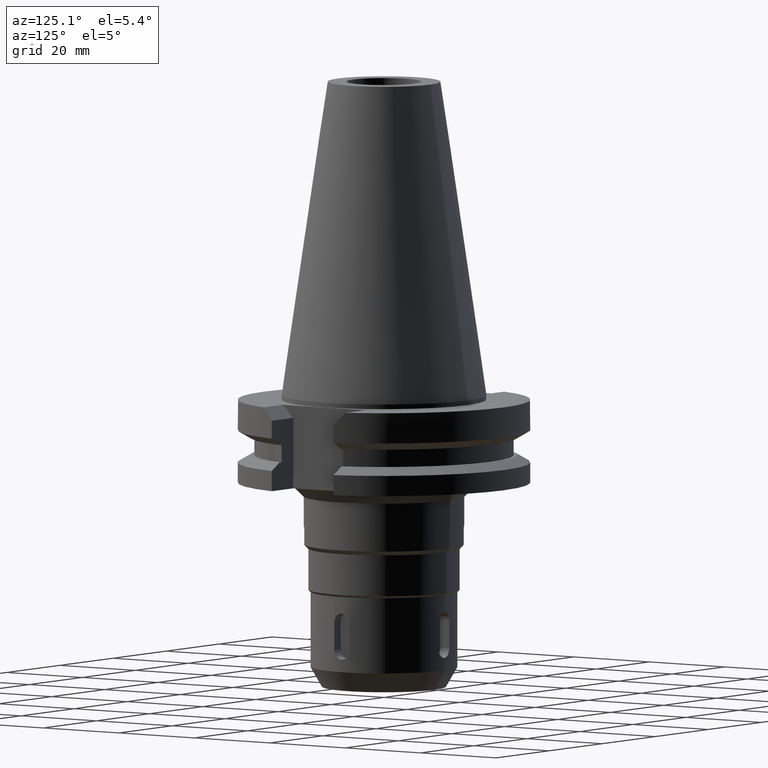
[diagram: clean part render]
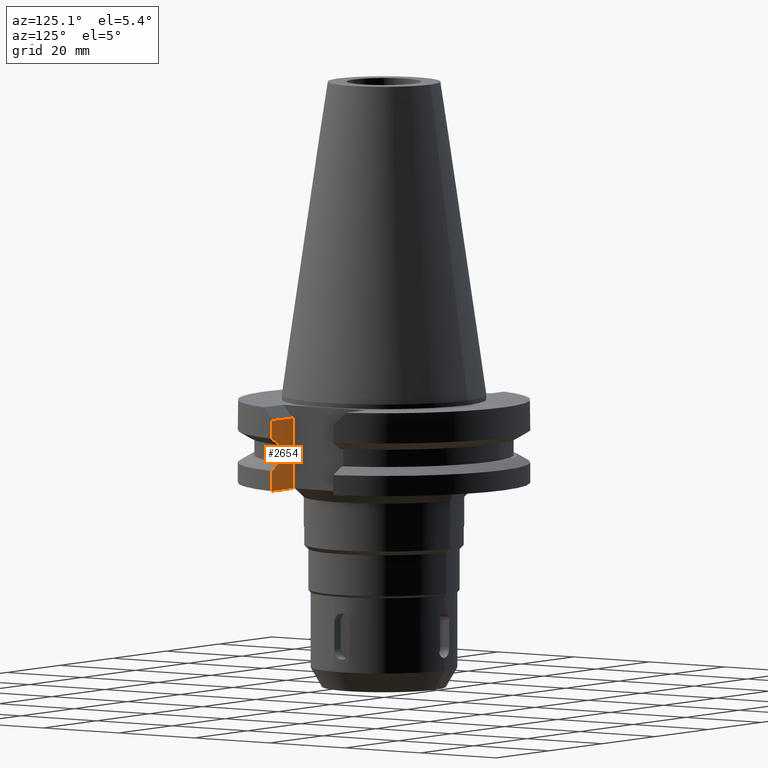
[diagram: same view with one face highlighted and labeled with its STEP entity id]
A machine part, auxiliary view. The second image highlights one B-rep face of the part: STEP entity #2654.
In plain terms, the highlighted planar face has unit normal (0, -1, 0).
Its self-contained STEP definition (entity closure, byte-faithful):
#170=DIRECTION('',(0.E0,0.E0,1.E0));
#171=VECTOR('',#170,1.535E1);
#172=CARTESIAN_POINT('',(2.257E1,-8.19E0,-1.905E1));
#173=LINE('',#172,#171);
#583=DIRECTION('',(-4.159181159240E-8,-1.557818286709E-7,-1.E0));
#584=VECTOR('',#583,3.901327799664E0);
#585=CARTESIAN_POINT('',(3.067550162589E1,-8.19E0,-3.7E0));
#586=LINE('',#585,#584);
#605=DIRECTION('',(1.E0,0.E0,0.E0));
#606=VECTOR('',#605,8.105501625890E0);
#607=CARTESIAN_POINT('',(2.257E1,-8.19E0,-1.905E1));
#608=LINE('',#607,#606);
#612=DIRECTION('',(1.E0,-2.301803100821E-7,-1.025792351895E-12));
#613=VECTOR('',#612,8.225538990973E-1);
#614=CARTESIAN_POINT('',(2.696361066326E1,-8.19E0,-9.2075E0));
#615=LINE('',#614,#613);
#619=CARTESIAN_POINT('',(2.778616456236E1,-8.190000189336E0,-9.207500000001E0));
#620=CARTESIAN_POINT('',(2.810749131974E1,-8.190000189336E0,-9.029550884072E0));
#621=CARTESIAN_POINT('',(2.874991652118E1,-8.189999992677E0,-8.673260527708E0));
#622=CARTESIAN_POINT('',(2.971304235263E1,-8.189999741625E0,-8.137892751983E0));
#623=CARTESIAN_POINT('',(3.035472199192E1,-8.190000607756E0,-7.780262214448E0));
#624=CARTESIAN_POINT('',(3.067550146363E1,-8.190000607756E0,-7.601327799664E0));
#629=DIRECTION('',(-1.E0,0.E0,0.E0));
#630=VECTOR('',#629,8.105501625890E0);
#631=CARTESIAN_POINT('',(3.067550162589E1,-8.19E0,-3.7E0));
#632=LINE('',#631,#630);
#636=DIRECTION('',(3.690865793663E-8,1.382412795709E-7,-1.E0));
#637=VECTOR('',#636,4.396327799926E0);
#638=CARTESIAN_POINT('',(3.067550146363E1,-8.190000607754E0,-1.465367220007E1));
#639=LINE('',#638,#637);
#729=DIRECTION('',(0.E0,0.E0,-1.E0));
#730=VECTOR('',#729,3.84E0);
#731=CARTESIAN_POINT('',(2.696361066326E1,-8.19E0,-9.2075E0));
#732=LINE('',#731,#730);
#743=DIRECTION('',(1.E0,-2.302118592400E-7,4.124765037908E-13));
#744=VECTOR('',#743,8.225538987247E-1);
#745=CARTESIAN_POINT('',(2.696361066326E1,-8.19E0,-1.30475E1));
#746=LINE('',#745,#744);
#782=CARTESIAN_POINT('',(2.778616456199E1,-8.190000189362E0,-1.30475E1));
#783=CARTESIAN_POINT('',(2.809933682813E1,-8.190000189362E0,-1.322093320036E1));
#784=CARTESIAN_POINT('',(2.873091124923E1,-8.189999992665E0,-1.357116284188E1));
#785=CARTESIAN_POINT('',(2.969401372316E1,-8.189999741630E0,-1.410657133092E1));
#786=CARTESIAN_POINT('',(3.034658116890E1,-8.190000607754E0,-1.447019674220E1));
#787=CARTESIAN_POINT('',(3.067550146363E1,-8.190000607754E0,-1.465367220007E1));
#2054=CARTESIAN_POINT('',(2.257E1,-8.19E0,-1.905E1));
#2056=VERTEX_POINT('',#2054);
#2070=CARTESIAN_POINT('',(3.067550162589E1,-8.19E0,-1.905E1));
#2072=VERTEX_POINT('',#2070);
#2073=CARTESIAN_POINT('',(2.257E1,-8.19E0,-3.7E0));
#2074=VERTEX_POINT('',#2073);
#2081=CARTESIAN_POINT('',(3.067550146363E1,-8.190000607754E0,
-1.465367220007E1));
#2082=VERTEX_POINT('',#2081);
#2083=VERTEX_POINT('',#782);
#2084=CARTESIAN_POINT('',(2.696361066326E1,-8.19E0,-1.30475E1));
#2085=VERTEX_POINT('',#2084);
#2086=CARTESIAN_POINT('',(2.696361066326E1,-8.19E0,-9.2075E0));
#2087=VERTEX_POINT('',#2086);
#2088=CARTESIAN_POINT('',(2.778616456236E1,-8.190000189336E0,
-9.207500000001E0));
#2089=VERTEX_POINT('',#2088);
#2090=VERTEX_POINT('',#624);
#2091=CARTESIAN_POINT('',(3.067550162589E1,-8.19E0,-3.7E0));
#2092=VERTEX_POINT('',#2091);
#2631=CARTESIAN_POINT('',(2.257E1,-8.19E0,-3.7E0));
#2632=DIRECTION('',(0.E0,-1.E0,0.E0));
#2633=DIRECTION('',(0.E0,0.E0,-1.E0));
#2634=AXIS2_PLACEMENT_3D('',#2631,#2632,#2633);
#2635=PLANE('',#2634);
#2636=ORIENTED_EDGE('',*,*,#2358,.T.);
#2638=ORIENTED_EDGE('',*,*,#2637,.F.);
#2640=ORIENTED_EDGE('',*,*,#2639,.F.);
#2642=ORIENTED_EDGE('',*,*,#2641,.F.);
#2644=ORIENTED_EDGE('',*,*,#2643,.F.);
#2646=ORIENTED_EDGE('',*,*,#2645,.T.);
#2648=ORIENTED_EDGE('',*,*,#2647,.T.);
#2649=ORIENTED_EDGE('',*,*,#2604,.F.);
#2650=ORIENTED_EDGE('',*,*,#2626,.T.);
#2651=ORIENTED_EDGE('',*,*,#2324,.F.);
#2652=EDGE_LOOP('',(#2636,#2638,#2640,#2642,#2644,#2646,#2648,#2649,#2650,
#2651));
#2653=FACE_OUTER_BOUND('',#2652,.F.);
#625=B_SPLINE_CURVE_WITH_KNOTS('',3,(#619,#620,#621,#622,#623,#624),
.UNSPECIFIED.,.F.,.F.,(4,1,1,4),(0.E0,3.333333333333E-1,6.666666666667E-1,1.E0),
.UNSPECIFIED.);
#788=B_SPLINE_CURVE_WITH_KNOTS('',3,(#782,#783,#784,#785,#786,#787),
.UNSPECIFIED.,.F.,.F.,(4,1,1,4),(0.E0,3.333333333333E-1,6.666666666667E-1,1.E0),
.UNSPECIFIED.);
#2324=EDGE_CURVE('',#2056,#2074,#173,.T.);
#2358=EDGE_CURVE('',#2056,#2072,#608,.T.);
#2604=EDGE_CURVE('',#2092,#2090,#586,.T.);
#2626=EDGE_CURVE('',#2092,#2074,#632,.T.);
#2637=EDGE_CURVE('',#2082,#2072,#639,.T.);
#2639=EDGE_CURVE('',#2083,#2082,#788,.T.);
#2641=EDGE_CURVE('',#2085,#2083,#746,.T.);
#2643=EDGE_CURVE('',#2087,#2085,#732,.T.);
#2645=EDGE_CURVE('',#2087,#2089,#615,.T.);
#2647=EDGE_CURVE('',#2089,#2090,#625,.T.);
#2654=ADVANCED_FACE('',(#2653),#2635,.F.);